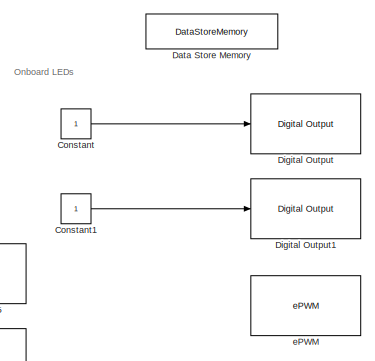
[diagram: root canvas - part 1/4, top right region]
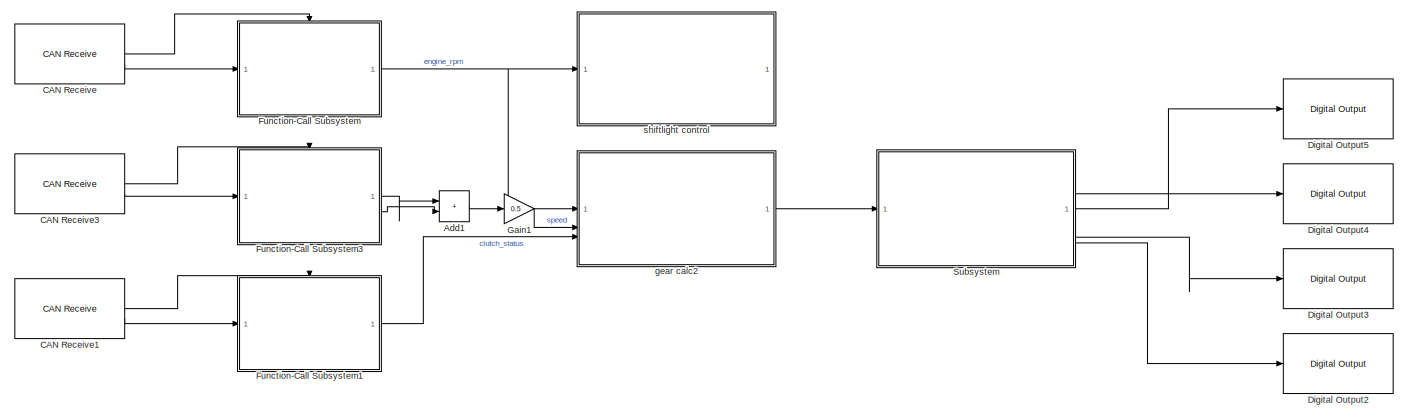
[diagram: root canvas - part 2/4, central region]
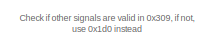
[diagram: root canvas - part 3/4, middle left region]
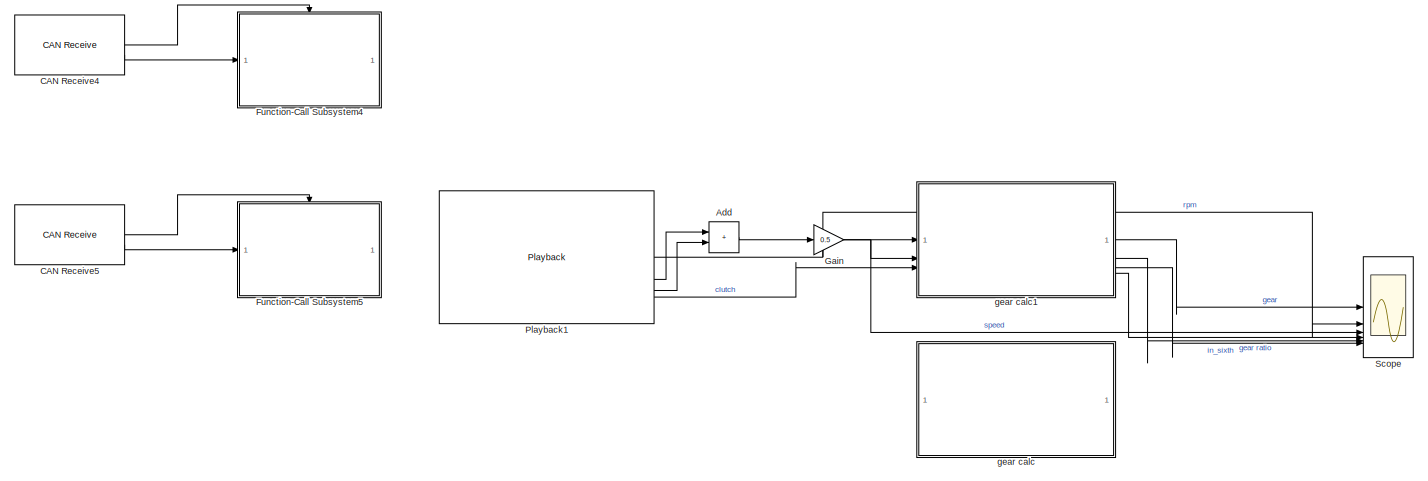
[diagram: root canvas - part 4/4, bottom center region]
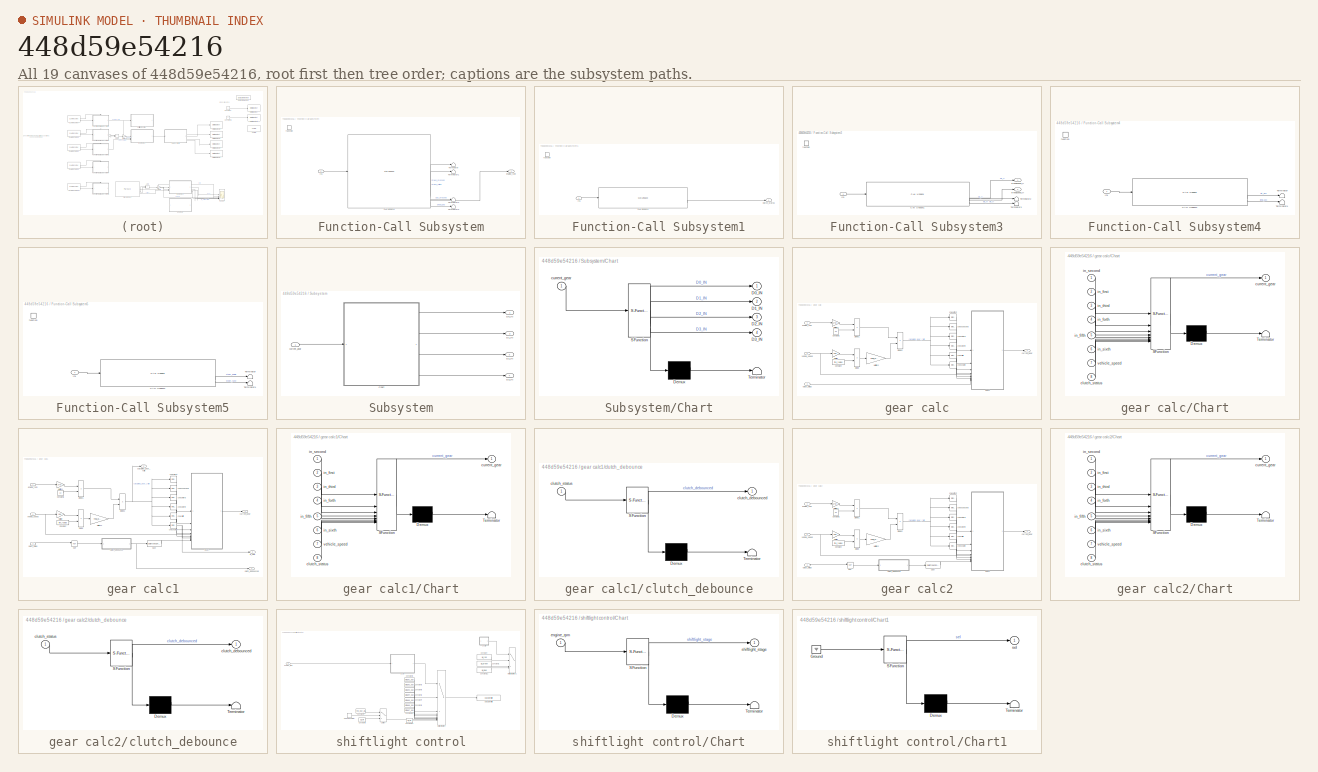
[diagram: thumbnail index - all 19 canvases of the model, root first then tree order]
MODEL slx_448d59e54216
KIND model
CONFIG AbsTol = auto
CONFIG EnableMultiTasking = on
CONFIG FixedStep = 0.001
CONFIG MaxStep = auto
CONFIG MinStep = auto
CONFIG PreLoadFcn = colow_ws2812
CONFIG RelTol = 1e-3
CONFIG SampleTimeConstraint = Unconstrained
CONFIG SolverName = FixedStepAuto
CONFIG StartTime = 0.0
CONFIG StopTime = inf
BLOCK [Sum] Add
  Commented = on
  IconShape = rectangular
BLOCK [Sum] Add1
  IconShape = rectangular
BLOCK [Reference] CAN Receive  REF=c280xlib/CAN Receive
  LibrarySourceBlock = c2837xDlib/CAN Receive
  SourceBlock = c280xlib/CAN Receive
  SourceType = C28x CAN Receive
BLOCK [Reference] CAN Receive1  REF=c280xlib/CAN Receive
  LibrarySourceBlock = c2837xDlib/CAN Receive
  SourceBlock = c280xlib/CAN Receive
  SourceType = C28x CAN Receive
BLOCK [Reference] CAN Receive3  REF=c280xlib/CAN Receive
  LibrarySourceBlock = c2837xDlib/CAN Receive
  SourceBlock = c280xlib/CAN Receive
  SourceType = C28x CAN Receive
BLOCK [Reference] CAN Receive4  REF=c280xlib/CAN Receive
  Commented = on
  LibrarySourceBlock = c2837xDlib/CAN Receive
  SourceBlock = c280xlib/CAN Receive
  SourceType = C28x CAN Receive
BLOCK [Reference] CAN Receive5  REF=c280xlib/CAN Receive
  Commented = on
  LibrarySourceBlock = c2837xDlib/CAN Receive
  SourceBlock = c280xlib/CAN Receive
  SourceType = C28x CAN Receive
BLOCK [Constant] Constant
BLOCK [Constant] Constant1
BLOCK [DataStoreMemory] Data Store Memory
  DataStoreName = duty_cycle_table
  Dimensions = 396
  InitialValue = all_off
  OutDataTypeStr = uint16
  ShowAdditionalParam = off
  WriteAfterWriteMsg = warning
BLOCK [Reference] Digital Output  REF=c2837xDlib/Digital Output
  SourceBlock = c2837xDlib/Digital Output
  SourceType = F2837x GPIO Digital Output
  UserDataPersistent = on
BLOCK [Reference] Digital Output1  REF=c2837xDlib/Digital Output
  SourceBlock = c2837xDlib/Digital Output
  SourceType = F2837x GPIO Digital Output
  UserDataPersistent = on
BLOCK [Reference] Digital Output2  REF=c2837xDlib/Digital Output
  SourceBlock = c2837xDlib/Digital Output
  SourceType = F2837x GPIO Digital Output
  UserDataPersistent = on
BLOCK [Reference] Digital Output3  REF=c2837xDlib/Digital Output
  SourceBlock = c2837xDlib/Digital Output
  SourceType = F2837x GPIO Digital Output
  UserDataPersistent = on
BLOCK [Reference] Digital Output4  REF=c2837xDlib/Digital Output
  SourceBlock = c2837xDlib/Digital Output
  SourceType = F2837x GPIO Digital Output
  UserDataPersistent = on
BLOCK [Reference] Digital Output5  REF=c2837xDlib/Digital Output
  SourceBlock = c2837xDlib/Digital Output
  SourceType = F2837x GPIO Digital Output
  UserDataPersistent = on
BLOCK [SubSystem] Function-Call Subsystem
  TreatAsAtomicUnit = on
BLOCK [Reference] Function-Call Subsystem/CAN Unpack1  REF=canmsglib/CAN Unpack
  LibrarySourceBlock = c2000lib/Target Communication/CAN Unpack
  SourceBlock = canmsglib/CAN Unpack
  SourceType = CAN Unpack
BLOCK [Inport] Function-Call Subsystem/In1
BLOCK [Terminator] Function-Call Subsystem/Terminator
BLOCK [Terminator] Function-Call Subsystem/Terminator1
BLOCK [Terminator] Function-Call Subsystem/Terminator2
BLOCK [Terminator] Function-Call Subsystem/Terminator3
BLOCK [Outport] Function-Call Subsystem/engine_rpm
BLOCK [TriggerPort] Function-Call Subsystem/function
  StatesWhenEnabling = held
  TriggerType = function-call
  VariantControl = (inherit)
BLOCK [SubSystem] Function-Call Subsystem1
  TreatAsAtomicUnit = on
BLOCK [Reference] Function-Call Subsystem1/CAN Unpack1  REF=canmsglib/CAN Unpack
  LibrarySourceBlock = c2000lib/Target Communication/CAN Unpack
  SourceBlock = canmsglib/CAN Unpack
  SourceType = CAN Unpack
BLOCK [Inport] Function-Call Subsystem1/In1
BLOCK [Outport] Function-Call Subsystem1/clutch_status
BLOCK [TriggerPort] Function-Call Subsystem1/function
  StatesWhenEnabling = held
  TriggerType = function-call
  VariantControl = (inherit)
BLOCK [SubSystem] Function-Call Subsystem3
  TreatAsAtomicUnit = on
BLOCK [Reference] Function-Call Subsystem3/CAN Unpack1  REF=canmsglib/CAN Unpack
  LibrarySourceBlock = c2000lib/Target Communication/CAN Unpack
  SourceBlock = canmsglib/CAN Unpack
  SourceType = CAN Unpack
BLOCK [Inport] Function-Call Subsystem3/In1
BLOCK [Terminator] Function-Call Subsystem3/Terminator2
BLOCK [Terminator] Function-Call Subsystem3/Terminator3
BLOCK [TriggerPort] Function-Call Subsystem3/function
  StatesWhenEnabling = held
  TriggerType = function-call
  VariantControl = (inherit)
BLOCK [Outport] Function-Call Subsystem3/wheelspeed_fl
BLOCK [Outport] Function-Call Subsystem3/wheelspeed_fr
  Port = 2
BLOCK [SubSystem] Function-Call Subsystem4
  Commented = on
  TreatAsAtomicUnit = on
BLOCK [Reference] Function-Call Subsystem4/CAN Unpack1  REF=canmsglib/CAN Unpack
  LibrarySourceBlock = c2000lib/Target Communication/CAN Unpack
  SourceBlock = canmsglib/CAN Unpack
  SourceType = CAN Unpack
BLOCK [Inport] Function-Call Subsystem4/In1
BLOCK [Terminator] Function-Call Subsystem4/Terminator
BLOCK [Terminator] Function-Call Subsystem4/Terminator1
BLOCK [TriggerPort] Function-Call Subsystem4/function
  StatesWhenEnabling = held
  TriggerType = function-call
  VariantControl = (inherit)
BLOCK [SubSystem] Function-Call Subsystem5
  Commented = on
  TreatAsAtomicUnit = on
BLOCK [Reference] Function-Call Subsystem5/CAN Unpack1  REF=canmsglib/CAN Unpack
  LibrarySourceBlock = c2000lib/Target Communication/CAN Unpack
  SourceBlock = canmsglib/CAN Unpack
  SourceType = CAN Unpack
BLOCK [Inport] Function-Call Subsystem5/In1
BLOCK [Terminator] Function-Call Subsystem5/Terminator
BLOCK [Terminator] Function-Call Subsystem5/Terminator1
BLOCK [TriggerPort] Function-Call Subsystem5/function
  StatesWhenEnabling = held
  TriggerType = function-call
  VariantControl = (inherit)
BLOCK [Gain] Gain
  Commented = on
  Gain = 0.5
BLOCK [Gain] Gain1
  Gain = 0.5
BLOCK [Playback] Playback1
  Commented = on
  NumPorts = 4
  PartName = 793a99b5-5b81-49ab-9d78-3a6aebb216a4
BLOCK [Scope] Scope
  Commented = on
  Floating = off
  NumInputPorts = 6
  ScopeSpecificationString = Simulink.scopes.TimeScopeBlockCfg('CurrentConfiguration', extmgr.ConfigurationSet(extmgr.Configuration('Core','General UI',true),extmgr.Configuration('Core','Source UI',true),extmgr.Configuration('Sources','WiredSimulink',true,'DataLoggingVariableName','ScopeData1'),extmgr.Configuration('Visuals','Time Domain',true,'SerializedDisplays',{struct('MinYLimReal','-0.75','MaxYLimReal','6.75','YLabelReal...<+3801ch>
BLOCK [SubSystem] Subsystem
BLOCK [SubSystem] Subsystem/Chart
  ErrorFcn = Stateflow.Translate.translate
  PermitHierarchicalResolution = ExplicitOnly
  SFBlockType = Chart
  TreatAsAtomicUnit = on
BLOCK [Demux] Subsystem/Chart/ Demux 
  Outputs = 1
BLOCK [S-Function] Subsystem/Chart/ SFunction 
  EnableBusSupport = on
  FunctionName = sf_sfun
  PortCounts = [1 5]
  SFcnIsStateOwnerBlock = off
  SFunctionDeploymentMode = off
  Tag = Stateflow S-Function 8
BLOCK [Terminator] Subsystem/Chart/ Terminator 
BLOCK [Outport] Subsystem/Chart/D0_IN
BLOCK [Outport] Subsystem/Chart/D1_IN
  Port = 2
BLOCK [Outport] Subsystem/Chart/D2_IN
  Port = 3
BLOCK [Outport] Subsystem/Chart/D3_IN
  Port = 4
BLOCK [Inport] Subsystem/Chart/current_gear
BLOCK [Outport] Subsystem/D0_IN
BLOCK [Outport] Subsystem/D1_IN
  Port = 2
BLOCK [Outport] Subsystem/D2_IN
  Port = 3
BLOCK [Outport] Subsystem/D3_IN
  Port = 4
BLOCK [Inport] Subsystem/current_gear
BLOCK [Reference] ePWM  REF=c2802xlib/ePWM
  SourceBlock = c2802xlib/ePWM
  SourceType = ePWM Type 1-4
  UserDataPersistent = on
BLOCK [SubSystem] gear calc
  Commented = on
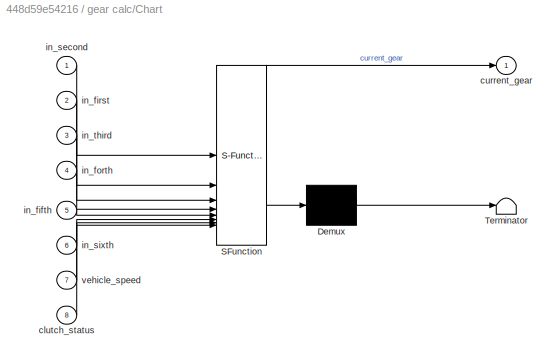
BLOCK [SubSystem] gear calc/Chart
  Commented = on
  ErrorFcn = Stateflow.Translate.translate
  PermitHierarchicalResolution = ExplicitOnly
  PortSchema = {"entries":[{"content":{"sides":[{"content":{"connectorIds":["In2","In1","In3","In4","In5","In6","In7","In8"]},"type":"ConnectorPlacement.EquallySpacedRectSide","uuid":"7c5ecf18-4ca5-48cf-b6cc-f6d674adc791"},{"content":{"connectorIds":["Out1"],"side":"RIGHT"},"type":"ConnectorPlacement.EquallySpacedRectSide","uuid":"8bc4c731-54ce-4b60-a017-d200a54467ca"},{"content":{"side":"TOP"},"type":"Connector...<+264ch>  <repeated x3 — deduplicated; at blocks: Chart>
  SFBlockType = Chart
  TreatAsAtomicUnit = on
BLOCK [Demux] gear calc/Chart/ Demux 
  Outputs = 1
BLOCK [S-Function] gear calc/Chart/ SFunction 
  EnableBusSupport = on
  FunctionName = sf_sfun
  PortCounts = [8 2]
  SFcnIsStateOwnerBlock = off
  SFunctionDeploymentMode = off
  Tag = Stateflow S-Function 1
BLOCK [Terminator] gear calc/Chart/ Terminator 
BLOCK [Inport] gear calc/Chart/clutch_status
  Port = 8
BLOCK [Outport] gear calc/Chart/current_gear
BLOCK [Inport] gear calc/Chart/in_fifth
  Port = 5
BLOCK [Inport] gear calc/Chart/in_first
  Port = 2
BLOCK [Inport] gear calc/Chart/in_forth
  Port = 4
BLOCK [Inport] gear calc/Chart/in_second
BLOCK [Inport] gear calc/Chart/in_sixth
  Port = 6
BLOCK [Inport] gear calc/Chart/in_third
  Port = 3
BLOCK [Inport] gear calc/Chart/vehicle_speed
  Port = 7
BLOCK [Constant] gear calc/Constant
  Value = tire_radius
BLOCK [Constant] gear calc/Constant1
  Value = 60
BLOCK [Product] gear calc/Divide
  Inputs = */
BLOCK [Product] gear calc/Divide1
  Inputs = */
BLOCK [Product] gear calc/Divide2
  Inputs = */
BLOCK [Gain] gear calc/Multiply
  Gain = 1/3.6
BLOCK [Gain] gear calc/Multiply1
  Gain = 2*pi
BLOCK [Gain] gear calc/Multiply2
  Gain = final_drive_ratio
BLOCK [Reference] gear calc/check fifth  REF=simulink/Logic and Bit
Operations/Interval Test
  SourceBlock = simulink/Logic and Bit\nOperations/Interval Test
  SourceType = Interval Test
BLOCK [Reference] gear calc/check first  REF=simulink/Logic and Bit
Operations/Interval Test
  SourceBlock = simulink/Logic and Bit\nOperations/Interval Test
  SourceType = Interval Test
BLOCK [Reference] gear calc/check forth  REF=simulink/Logic and Bit
Operations/Interval Test
  SourceBlock = simulink/Logic and Bit\nOperations/Interval Test
  SourceType = Interval Test
BLOCK [Reference] gear calc/check second  REF=simulink/Logic and Bit
Operations/Interval Test
  SourceBlock = simulink/Logic and Bit\nOperations/Interval Test
  SourceType = Interval Test
BLOCK [Reference] gear calc/check sixth  REF=simulink/Logic and Bit
Operations/Interval Test
  SourceBlock = simulink/Logic and Bit\nOperations/Interval Test
  SourceType = Interval Test
BLOCK [Reference] gear calc/check third  REF=simulink/Logic and Bit
Operations/Interval Test
  SourceBlock = simulink/Logic and Bit\nOperations/Interval Test
  SourceType = Interval Test
BLOCK [Inport] gear calc/clutch_status
  Port = 3
BLOCK [Outport] gear calc/current_gear
BLOCK [Inport] gear calc/engine_rpm
BLOCK [Inport] gear calc/vehicle_speed
  Port = 2
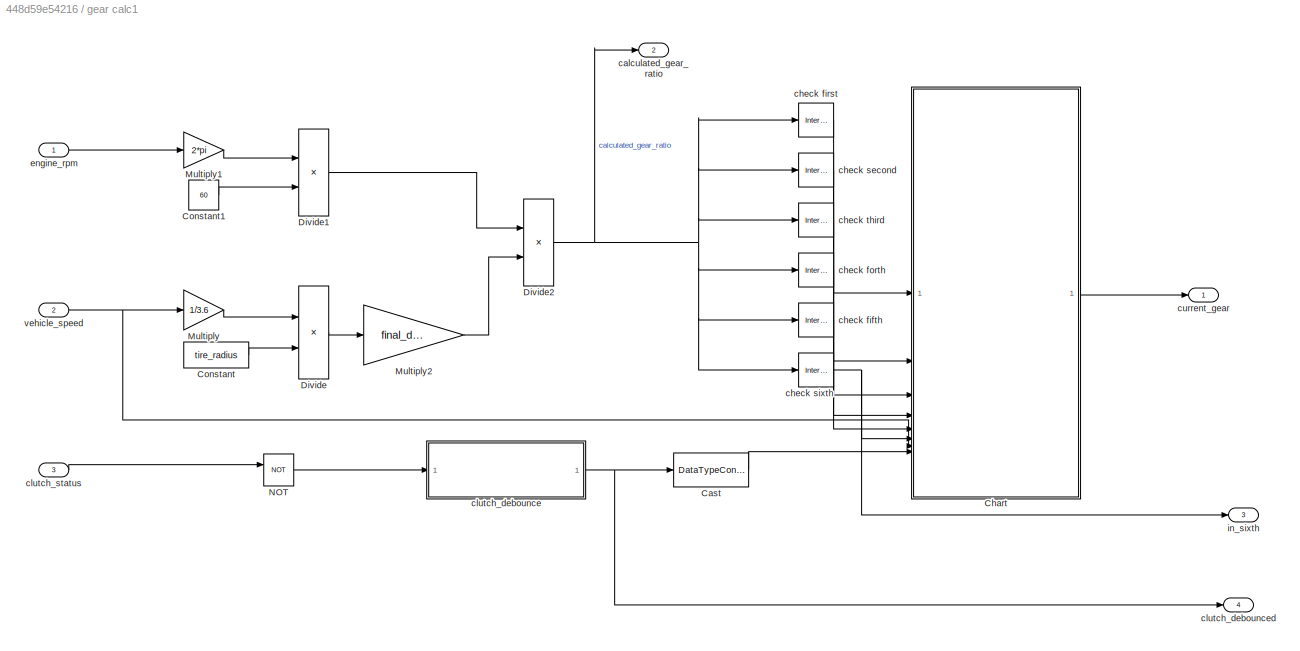
BLOCK [SubSystem] gear calc1
  Commented = on
BLOCK [DataTypeConversion] gear calc1/Cast
  OutDataTypeStr = boolean
  RndMeth = Floor
  SaturateOnIntegerOverflow = off
BLOCK [SubSystem] gear calc1/Chart
  ErrorFcn = Stateflow.Translate.translate
  PermitHierarchicalResolution = ExplicitOnly
  SFBlockType = Chart
  TreatAsAtomicUnit = on
BLOCK [Demux] gear calc1/Chart/ Demux 
  Outputs = 1
BLOCK [S-Function] gear calc1/Chart/ SFunction 
  EnableBusSupport = on
  FunctionName = sf_sfun
  PortCounts = [8 2]
  SFcnIsStateOwnerBlock = off
  SFunctionDeploymentMode = off
  Tag = Stateflow S-Function 4
BLOCK [Terminator] gear calc1/Chart/ Terminator 
BLOCK [Inport] gear calc1/Chart/clutch_status
  Port = 8
BLOCK [Outport] gear calc1/Chart/current_gear
BLOCK [Inport] gear calc1/Chart/in_fifth
  Port = 5
BLOCK [Inport] gear calc1/Chart/in_first
  Port = 2
BLOCK [Inport] gear calc1/Chart/in_forth
  Port = 4
BLOCK [Inport] gear calc1/Chart/in_second
BLOCK [Inport] gear calc1/Chart/in_sixth
  Port = 6
BLOCK [Inport] gear calc1/Chart/in_third
  Port = 3
BLOCK [Inport] gear calc1/Chart/vehicle_speed
  Port = 7
BLOCK [Constant] gear calc1/Constant
  Value = tire_radius
BLOCK [Constant] gear calc1/Constant1
  Value = 60
BLOCK [Product] gear calc1/Divide
  Inputs = */
BLOCK [Product] gear calc1/Divide1
  Inputs = */
BLOCK [Product] gear calc1/Divide2
  Inputs = */
BLOCK [Gain] gear calc1/Multiply
  Gain = 1/3.6
BLOCK [Gain] gear calc1/Multiply1
  Gain = 2*pi
BLOCK [Gain] gear calc1/Multiply2
  Gain = final_drive_ratio
BLOCK [Logic] gear calc1/NOT
  AllPortsSameDT = off
  IconShape = distinctive
  Operator = NOT
  OutDataTypeStr = boolean
BLOCK [Outport] gear calc1/calculated_gear_ratio
  Port = 2
BLOCK [Reference] gear calc1/check fifth  REF=simulink/Logic and Bit
Operations/Interval Test
  SourceBlock = simulink/Logic and Bit\nOperations/Interval Test
  SourceType = Interval Test
BLOCK [Reference] gear calc1/check first  REF=simulink/Logic and Bit
Operations/Interval Test
  SourceBlock = simulink/Logic and Bit\nOperations/Interval Test
  SourceType = Interval Test
BLOCK [Reference] gear calc1/check forth  REF=simulink/Logic and Bit
Operations/Interval Test
  SourceBlock = simulink/Logic and Bit\nOperations/Interval Test
  SourceType = Interval Test
BLOCK [Reference] gear calc1/check second  REF=simulink/Logic and Bit
Operations/Interval Test
  SourceBlock = simulink/Logic and Bit\nOperations/Interval Test
  SourceType = Interval Test
BLOCK [Reference] gear calc1/check sixth  REF=simulink/Logic and Bit
Operations/Interval Test
  SourceBlock = simulink/Logic and Bit\nOperations/Interval Test
  SourceType = Interval Test
BLOCK [Reference] gear calc1/check third  REF=simulink/Logic and Bit
Operations/Interval Test
  SourceBlock = simulink/Logic and Bit\nOperations/Interval Test
  SourceType = Interval Test
BLOCK [SubSystem] gear calc1/clutch_debounce
  ErrorFcn = Stateflow.Translate.translate
  PermitHierarchicalResolution = ExplicitOnly
  SFBlockType = Chart
  TreatAsAtomicUnit = on
BLOCK [Demux] gear calc1/clutch_debounce/ Demux 
  Outputs = 1
BLOCK [S-Function] gear calc1/clutch_debounce/ SFunction 
  EnableBusSupport = on
  FunctionName = sf_sfun
  PortCounts = [1 2]
  SFcnIsStateOwnerBlock = off
  SFunctionDeploymentMode = off
  Tag = Stateflow S-Function 2
BLOCK [Terminator] gear calc1/clutch_debounce/ Terminator 
BLOCK [Outport] gear calc1/clutch_debounce/clutch_debounced
BLOCK [Inport] gear calc1/clutch_debounce/clutch_status
BLOCK [Outport] gear calc1/clutch_debounced
  Port = 4
BLOCK [Inport] gear calc1/clutch_status
  Port = 3
BLOCK [Outport] gear calc1/current_gear
BLOCK [Inport] gear calc1/engine_rpm
BLOCK [Outport] gear calc1/in_sixth
  Port = 3
BLOCK [Inport] gear calc1/vehicle_speed
  Port = 2
BLOCK [SubSystem] gear calc2
BLOCK [DataTypeConversion] gear calc2/Cast
  OutDataTypeStr = boolean
  RndMeth = Floor
  SaturateOnIntegerOverflow = off
BLOCK [SubSystem] gear calc2/Chart
  ErrorFcn = Stateflow.Translate.translate
  PermitHierarchicalResolution = ExplicitOnly
  SFBlockType = Chart
  TreatAsAtomicUnit = on
BLOCK [Demux] gear calc2/Chart/ Demux 
  Outputs = 1
BLOCK [S-Function] gear calc2/Chart/ SFunction 
  EnableBusSupport = on
  FunctionName = sf_sfun
  PortCounts = [8 2]
  SFcnIsStateOwnerBlock = off
  SFunctionDeploymentMode = off
  Tag = Stateflow S-Function 6
BLOCK [Terminator] gear calc2/Chart/ Terminator 
BLOCK [Inport] gear calc2/Chart/clutch_status
  Port = 8
BLOCK [Outport] gear calc2/Chart/current_gear
BLOCK [Inport] gear calc2/Chart/in_fifth
  Port = 5
BLOCK [Inport] gear calc2/Chart/in_first
  Port = 2
BLOCK [Inport] gear calc2/Chart/in_forth
  Port = 4
BLOCK [Inport] gear calc2/Chart/in_second
BLOCK [Inport] gear calc2/Chart/in_sixth
  Port = 6
BLOCK [Inport] gear calc2/Chart/in_third
  Port = 3
BLOCK [Inport] gear calc2/Chart/vehicle_speed
  Port = 7
BLOCK [Constant] gear calc2/Constant
  Value = tire_radius
BLOCK [Constant] gear calc2/Constant1
  Value = 60
BLOCK [Product] gear calc2/Divide
  Inputs = */
BLOCK [Product] gear calc2/Divide1
  Inputs = */
BLOCK [Product] gear calc2/Divide2
  Inputs = */
BLOCK [Gain] gear calc2/Multiply
  Gain = 1/3.6
BLOCK [Gain] gear calc2/Multiply1
  Gain = 2*pi
BLOCK [Gain] gear calc2/Multiply2
  Gain = final_drive_ratio
BLOCK [Logic] gear calc2/NOT
  AllPortsSameDT = off
  IconShape = distinctive
  Operator = NOT
  OutDataTypeStr = boolean
BLOCK [Reference] gear calc2/check fifth  REF=simulink/Logic and Bit
Operations/Interval Test
  SourceBlock = simulink/Logic and Bit\nOperations/Interval Test
  SourceType = Interval Test
BLOCK [Reference] gear calc2/check first  REF=simulink/Logic and Bit
Operations/Interval Test
  SourceBlock = simulink/Logic and Bit\nOperations/Interval Test
  SourceType = Interval Test
BLOCK [Reference] gear calc2/check forth  REF=simulink/Logic and Bit
Operations/Interval Test
  SourceBlock = simulink/Logic and Bit\nOperations/Interval Test
  SourceType = Interval Test
BLOCK [Reference] gear calc2/check second  REF=simulink/Logic and Bit
Operations/Interval Test
  SourceBlock = simulink/Logic and Bit\nOperations/Interval Test
  SourceType = Interval Test
BLOCK [Reference] gear calc2/check sixth  REF=simulink/Logic and Bit
Operations/Interval Test
  SourceBlock = simulink/Logic and Bit\nOperations/Interval Test
  SourceType = Interval Test
BLOCK [Reference] gear calc2/check third  REF=simulink/Logic and Bit
Operations/Interval Test
  SourceBlock = simulink/Logic and Bit\nOperations/Interval Test
  SourceType = Interval Test
BLOCK [SubSystem] gear calc2/clutch_debounce
  ErrorFcn = Stateflow.Translate.translate
  PermitHierarchicalResolution = ExplicitOnly
  SFBlockType = Chart
  TreatAsAtomicUnit = on
BLOCK [Demux] gear calc2/clutch_debounce/ Demux 
  Outputs = 1
BLOCK [S-Function] gear calc2/clutch_debounce/ SFunction 
  EnableBusSupport = on
  FunctionName = sf_sfun
  PortCounts = [1 2]
  SFcnIsStateOwnerBlock = off
  SFunctionDeploymentMode = off
  Tag = Stateflow S-Function 7
BLOCK [Terminator] gear calc2/clutch_debounce/ Terminator 
BLOCK [Outport] gear calc2/clutch_debounce/clutch_debounced
BLOCK [Inport] gear calc2/clutch_debounce/clutch_status
BLOCK [Inport] gear calc2/clutch_status
  Port = 3
BLOCK [Outport] gear calc2/current_gear
BLOCK [Inport] gear calc2/engine_rpm
BLOCK [Inport] gear calc2/vehicle_speed
  Port = 2
BLOCK [SubSystem] shiftlight control
BLOCK [SubSystem] shiftlight control/Chart
  ErrorFcn = Stateflow.Translate.translate
  PermitHierarchicalResolution = ExplicitOnly
  SFBlockType = Chart
  TreatAsAtomicUnit = on
BLOCK [Demux] shiftlight control/Chart/ Demux 
  Outputs = 1
BLOCK [S-Function] shiftlight control/Chart/ SFunction 
  EnableBusSupport = on
  FunctionName = sf_sfun
  PortCounts = [1 2]
  SFcnIsStateOwnerBlock = off
  SFunctionDeploymentMode = off
  Tag = Stateflow S-Function 3
BLOCK [Terminator] shiftlight control/Chart/ Terminator 
BLOCK [Inport] shiftlight control/Chart/engine_rpm
BLOCK [Outport] shiftlight control/Chart/shiftlight_stage
BLOCK [SubSystem] shiftlight control/Chart1
  Commented = on
  ErrorFcn = Stateflow.Translate.translate
  PermitHierarchicalResolution = ExplicitOnly
  SFBlockType = Chart
  TreatAsAtomicUnit = on
BLOCK [Demux] shiftlight control/Chart1/ Demux 
  Outputs = 1
BLOCK [Ground] shiftlight control/Chart1/ Ground 
BLOCK [S-Function] shiftlight control/Chart1/ SFunction 
  EnableBusSupport = on
  FunctionName = sf_sfun
  PortCounts = [1 2]
  SFcnIsStateOwnerBlock = off
  SFunctionDeploymentMode = off
  Tag = Stateflow S-Function 5
BLOCK [Terminator] shiftlight control/Chart1/ Terminator 
BLOCK [Outport] shiftlight control/Chart1/sel
BLOCK [Constant] shiftlight control/Constant
  Commented = on
  Value = all_red
BLOCK [Constant] shiftlight control/Constant1
  Commented = on
  Value = all_green
BLOCK [Constant] shiftlight control/Constant10
  OutDataTypeStr = uint16
  Value = stage7_day
BLOCK [Constant] shiftlight control/Constant11
  OutDataTypeStr = uint16
  Value = all_off
BLOCK [Constant] shiftlight control/Constant12
  Commented = on
  Value = all_blue
BLOCK [Constant] shiftlight control/Constant2
  OutDataTypeStr = uint16
  Value = stage1_day
BLOCK [Constant] shiftlight control/Constant3
  OutDataTypeStr = uint16
  Value = stage2_day
BLOCK [Constant] shiftlight control/Constant4
  OutDataTypeStr = uint16
  Value = red_day_all
BLOCK [Constant] shiftlight control/Constant5
  OutDataTypeStr = uint16
  Value = stage3_day
BLOCK [Constant] shiftlight control/Constant6
  OutDataTypeStr = uint16
  Value = stage4_day
BLOCK [Constant] shiftlight control/Constant7
  OutDataTypeStr = uint16
  Value = stage5_day
BLOCK [Constant] shiftlight control/Constant8
  OutDataTypeStr = uint16
  Value = all_off
BLOCK [Constant] shiftlight control/Constant9
  OutDataTypeStr = uint16
  Value = stage6_day
BLOCK [DataStoreWrite] shiftlight control/Data Store Write
  DataStoreName = duty_cycle_table
  IndexOptions = Index vector (dialog)
  Indices = 1
  OutputSizes = 1
BLOCK [MultiPortSwitch] shiftlight control/Multiport Switch
  DataPortIndices = {5500,6000,6500,6800,0}
  DiagnosticForDefault = Warning
  InputSameDT = off
  Inputs = 9
  SaturateOnIntegerOverflow = off
BLOCK [MultiPortSwitch] shiftlight control/Multiport Switch1
  Commented = on
  DataPortOrder = Zero-based contiguous
  InputSameDT = off
  OutDataTypeStr = uint16
  SaturateOnIntegerOverflow = off
  zeroidx = on
BLOCK [DiscretePulseGenerator] shiftlight control/Pulse Generator
  Period = 0.15
  PulseType = Time based
  PulseWidth = 50
BLOCK [Switch] shiftlight control/Switch
  Criteria = u2 > Threshold
  InputSameDT = off
  SaturateOnIntegerOverflow = off
BLOCK [Inport] shiftlight control/engine_rpm
ANNOTATION (root): Check if other signals are valid in 0x309, if not, use 0x1d0 instead
ANNOTATION (root): Onboard LEDs
LINE Add1:1 -> Gain1:1
LINE Add:1 -> Gain:1
LINE CAN Receive1:1 -> Function-Call Subsystem1:trigger
LINE CAN Receive1:2 -> Function-Call Subsystem1:1
LINE CAN Receive3:1 -> Function-Call Subsystem3:trigger
LINE CAN Receive3:2 -> Function-Call Subsystem3:1
LINE CAN Receive4:1 -> Function-Call Subsystem4:trigger
LINE CAN Receive4:2 -> Function-Call Subsystem4:1
LINE CAN Receive5:1 -> Function-Call Subsystem5:trigger
LINE CAN Receive5:2 -> Function-Call Subsystem5:1
LINE CAN Receive:1 -> Function-Call Subsystem:trigger
LINE CAN Receive:2 -> Function-Call Subsystem:1
LINE Constant1:1 -> Digital Output1:1
LINE Constant:1 -> Digital Output:1
LINE Function-Call Subsystem/CAN Unpack1:10 -> Function-Call Subsystem/Terminator2:1
LINE Function-Call Subsystem/CAN Unpack1:11 -> Function-Call Subsystem/Terminator3:1
LINE Function-Call Subsystem/CAN Unpack1:5 -> Function-Call Subsystem/Terminator:1
LINE Function-Call Subsystem/CAN Unpack1:6 -> Function-Call Subsystem/Terminator1:1
LINE Function-Call Subsystem/CAN Unpack1:9 -> Function-Call Subsystem/engine_rpm:1
LINE Function-Call Subsystem/In1:1 -> Function-Call Subsystem/CAN Unpack1:1
LINE Function-Call Subsystem1/CAN Unpack1:3 -> Function-Call Subsystem1/clutch_status:1
LINE Function-Call Subsystem1/In1:1 -> Function-Call Subsystem1/CAN Unpack1:1
LINE Function-Call Subsystem1:1 -> gear calc2:3
LINE Function-Call Subsystem3/CAN Unpack1:2 -> Function-Call Subsystem3/wheelspeed_fl:1
LINE Function-Call Subsystem3/CAN Unpack1:3 -> Function-Call Subsystem3/wheelspeed_fr:1
LINE Function-Call Subsystem3/CAN Unpack1:4 -> Function-Call Subsystem3/Terminator2:1
LINE Function-Call Subsystem3/CAN Unpack1:5 -> Function-Call Subsystem3/Terminator3:1
LINE Function-Call Subsystem3/In1:1 -> Function-Call Subsystem3/CAN Unpack1:1
LINE Function-Call Subsystem3:1 -> Add1:1
LINE Function-Call Subsystem3:2 -> Add1:2
LINE Function-Call Subsystem4/CAN Unpack1:3 -> Function-Call Subsystem4/Terminator:1
LINE Function-Call Subsystem4/CAN Unpack1:4 -> Function-Call Subsystem4/Terminator1:1
LINE Function-Call Subsystem4/In1:1 -> Function-Call Subsystem4/CAN Unpack1:1
LINE Function-Call Subsystem5/CAN Unpack1:3 -> Function-Call Subsystem5/Terminator:1
LINE Function-Call Subsystem5/CAN Unpack1:4 -> Function-Call Subsystem5/Terminator1:1
LINE Function-Call Subsystem5/In1:1 -> Function-Call Subsystem5/CAN Unpack1:1
NET Function-Call Subsystem:1 -> gear calc2:1, shiftlight control:1
LINE Gain1:1 -> gear calc2:2
NET Gain:1 -> Scope:3, gear calc1:2
NET Playback1:1 -> Scope:2, gear calc1:1
LINE Playback1:2 -> Add:1
LINE Playback1:3 -> Add:2
LINE Playback1:4 -> gear calc1:3
LINE Subsystem/Chart:1 -> Subsystem/D0_IN:1
LINE Subsystem/Chart:2 -> Subsystem/D1_IN:1
LINE Subsystem/Chart:3 -> Subsystem/D2_IN:1
LINE Subsystem/Chart:4 -> Subsystem/D3_IN:1
LINE Subsystem/current_gear:1 -> Subsystem/Chart:1
LINE Subsystem:1 -> Digital Output5:1
LINE Subsystem:2 -> Digital Output4:1
LINE Subsystem:3 -> Digital Output3:1
LINE Subsystem:4 -> Digital Output2:1
LINE gear calc/Chart:1 -> gear calc/current_gear:1
LINE gear calc/Constant1:1 -> gear calc/Divide1:2
LINE gear calc/Constant:1 -> gear calc/Divide:2
LINE gear calc/Divide1:1 -> gear calc/Divide2:1
NET gear calc/Divide2:1 -> gear calc/check fifth:1, gear calc/check first:1, gear calc/check forth:1, gear calc/check second:1, gear calc/check sixth:1, gear calc/check third:1
LINE gear calc/Divide:1 -> gear calc/Multiply2:1
LINE gear calc/Multiply1:1 -> gear calc/Divide1:1
LINE gear calc/Multiply2:1 -> gear calc/Divide2:2
LINE gear calc/Multiply:1 -> gear calc/Divide:1
LINE gear calc/check fifth:1 -> gear calc/Chart:5
LINE gear calc/check first:1 -> gear calc/Chart:2
LINE gear calc/check forth:1 -> gear calc/Chart:4
LINE gear calc/check second:1 -> gear calc/Chart:1
LINE gear calc/check sixth:1 -> gear calc/Chart:6
LINE gear calc/check third:1 -> gear calc/Chart:3
LINE gear calc/clutch_status:1 -> gear calc/Chart:8
LINE gear calc/engine_rpm:1 -> gear calc/Multiply1:1
NET gear calc/vehicle_speed:1 -> gear calc/Chart:7, gear calc/Multiply:1
LINE gear calc1/Cast:1 -> gear calc1/Chart:8
LINE gear calc1/Chart:1 -> gear calc1/current_gear:1
LINE gear calc1/Constant1:1 -> gear calc1/Divide1:2
LINE gear calc1/Constant:1 -> gear calc1/Divide:2
LINE gear calc1/Divide1:1 -> gear calc1/Divide2:1
NET gear calc1/Divide2:1 -> gear calc1/calculated_gear_ratio:1, gear calc1/check fifth:1, gear calc1/check first:1, gear calc1/check forth:1, gear calc1/check second:1, gear calc1/check sixth:1, gear calc1/check third:1
LINE gear calc1/Divide:1 -> gear calc1/Multiply2:1
LINE gear calc1/Multiply1:1 -> gear calc1/Divide1:1
LINE gear calc1/Multiply2:1 -> gear calc1/Divide2:2
LINE gear calc1/Multiply:1 -> gear calc1/Divide:1
LINE gear calc1/NOT:1 -> gear calc1/clutch_debounce:1
LINE gear calc1/check fifth:1 -> gear calc1/Chart:5
LINE gear calc1/check first:1 -> gear calc1/Chart:2
LINE gear calc1/check forth:1 -> gear calc1/Chart:4
LINE gear calc1/check second:1 -> gear calc1/Chart:1
NET gear calc1/check sixth:1 -> gear calc1/Chart:6, gear calc1/in_sixth:1
LINE gear calc1/check third:1 -> gear calc1/Chart:3
NET gear calc1/clutch_debounce:1 -> gear calc1/Cast:1, gear calc1/clutch_debounced:1
LINE gear calc1/clutch_status:1 -> gear calc1/NOT:1
LINE gear calc1/engine_rpm:1 -> gear calc1/Multiply1:1
NET gear calc1/vehicle_speed:1 -> gear calc1/Chart:7, gear calc1/Multiply:1
LINE gear calc1:1 -> Scope:1
LINE gear calc1:2 -> Scope:5
LINE gear calc1:3 -> Scope:6
LINE gear calc1:4 -> Scope:4
LINE gear calc2/Cast:1 -> gear calc2/Chart:8
LINE gear calc2/Chart:1 -> gear calc2/current_gear:1
LINE gear calc2/Constant1:1 -> gear calc2/Divide1:2
LINE gear calc2/Constant:1 -> gear calc2/Divide:2
LINE gear calc2/Divide1:1 -> gear calc2/Divide2:1
NET gear calc2/Divide2:1 -> gear calc2/check fifth:1, gear calc2/check first:1, gear calc2/check forth:1, gear calc2/check second:1, gear calc2/check sixth:1, gear calc2/check third:1
LINE gear calc2/Divide:1 -> gear calc2/Multiply2:1
LINE gear calc2/Multiply1:1 -> gear calc2/Divide1:1
LINE gear calc2/Multiply2:1 -> gear calc2/Divide2:2
LINE gear calc2/Multiply:1 -> gear calc2/Divide:1
LINE gear calc2/NOT:1 -> gear calc2/clutch_debounce:1
LINE gear calc2/check fifth:1 -> gear calc2/Chart:5
LINE gear calc2/check first:1 -> gear calc2/Chart:2
LINE gear calc2/check forth:1 -> gear calc2/Chart:4
LINE gear calc2/check second:1 -> gear calc2/Chart:1
LINE gear calc2/check sixth:1 -> gear calc2/Chart:6
LINE gear calc2/check third:1 -> gear calc2/Chart:3
LINE gear calc2/clutch_debounce:1 -> gear calc2/Cast:1
LINE gear calc2/clutch_status:1 -> gear calc2/NOT:1
LINE gear calc2/engine_rpm:1 -> gear calc2/Multiply1:1
NET gear calc2/vehicle_speed:1 -> gear calc2/Chart:7, gear calc2/Multiply:1
LINE gear calc2:1 -> Subsystem:1
LINE shiftlight control/Chart1:1 -> shiftlight control/Multiport Switch1:1
LINE shiftlight control/Chart:1 -> shiftlight control/Multiport Switch:1
LINE shiftlight control/Constant10:1 -> shiftlight control/Multiport Switch:8
LINE shiftlight control/Constant11:1 -> shiftlight control/Multiport Switch:10
LINE shiftlight control/Constant12:1 -> shiftlight control/Multiport Switch1:4
LINE shiftlight control/Constant1:1 -> shiftlight control/Multiport Switch1:3
LINE shiftlight control/Constant2:1 -> shiftlight control/Multiport Switch:2
LINE shiftlight control/Constant3:1 -> shiftlight control/Multiport Switch:3
LINE shiftlight control/Constant4:1 -> shiftlight control/Switch:1
LINE shiftlight control/Constant5:1 -> shiftlight control/Multiport Switch:4
LINE shiftlight control/Constant6:1 -> shiftlight control/Multiport Switch:5
LINE shiftlight control/Constant7:1 -> shiftlight control/Multiport Switch:6
LINE shiftlight control/Constant8:1 -> shiftlight control/Switch:3
LINE shiftlight control/Constant9:1 -> shiftlight control/Multiport Switch:7
LINE shiftlight control/Constant:1 -> shiftlight control/Multiport Switch1:2
LINE shiftlight control/Multiport Switch:1 -> shiftlight control/Data Store Write:1
LINE shiftlight control/Pulse Generator:1 -> shiftlight control/Switch:2
LINE shiftlight control/Switch:1 -> shiftlight control/Multiport Switch:9
LINE shiftlight control/engine_rpm:1 -> shiftlight control/Chart:1
note: NET lines group one-source signal fan-out (src -> all destinations, sorted); 1:1 wires keep LINE
CHART gear calc1/Chart states=10 transitions=18
  STATE_LABEL 'Neutral\nen, du:\ncurrent_gear = 0;'
  STATE_LABEL 'Gear_Out'
  STATE_LABEL 'In_First\nen, du:\ncurrent_gear = 1;'
  STATE_LABEL 'In_Second\nen, du:\ncurrent_gear = 2;'
  STATE_LABEL 'In_Third\nen, du:\ncurrent_gear = 3;'
  STATE_LABEL 'In_Fourth\nen, du:\ncurrent_gear = 4;'
  STATE_LABEL 'In_Fifth\nen, du:\ncurrent_gear = 5;'
  STATE_LABEL 'In_Sixth\nen, du:\ncurrent_gear = 6;'
  STATE_LABEL 'In_First\nen, du:\ncurrent_gear = 1;'
  STATE_LABEL 'In_Second\nen, du:\ncurrent_gear = 2;'
  STATE_LABEL 'In_Third\nen, du:\ncurrent_gear = 3;'
  STATE_LABEL 'In_Fourth\nen, du:\ncurrent_gear = 4;'
  STATE_LABEL 'In_Fifth\nen, du:\ncurrent_gear = 5;'
  STATE_LABEL 'In_Sixth\nen, du:\ncurrent_gear = 6;'
  STATE_LABEL 'Clutch_Out\nen, du:\ncurrent_gear = 0;'
  STATE_LABEL 'Clutch_In\nen, du:\ncurrent_gear = 0;'
CHART shiftlight control/Chart1 states=3 transitions=4
  STATE_LABEL 'red\nen,du:\nsel = 0;'
  STATE_LABEL 'green\nen,du:\nsel = 1;\n'
  STATE_LABEL 'blue\nen,du:\nsel = 2;\n'
CHART gear calc2/Chart states=10 transitions=18
  STATE_LABEL 'Neutral\nen, du:\ncurrent_gear = 0;'
  STATE_LABEL 'Gear_Out'
  STATE_LABEL 'In_First\nen, du:\ncurrent_gear = 1;'
  STATE_LABEL 'In_Second\nen, du:\ncurrent_gear = 2;'
  STATE_LABEL 'In_Third\nen, du:\ncurrent_gear = 3;'
  STATE_LABEL 'In_Fourth\nen, du:\ncurrent_gear = 4;'
  STATE_LABEL 'In_Fifth\nen, du:\ncurrent_gear = 5;'
  STATE_LABEL 'In_Sixth\nen, du:\ncurrent_gear = 6;'
  STATE_LABEL 'In_First\nen, du:\ncurrent_gear = 1;'
  STATE_LABEL 'In_Second\nen, du:\ncurrent_gear = 2;'
  STATE_LABEL 'In_Third\nen, du:\ncurrent_gear = 3;'
  STATE_LABEL 'In_Fourth\nen, du:\ncurrent_gear = 4;'
  STATE_LABEL 'In_Fifth\nen, du:\ncurrent_gear = 5;'
  STATE_LABEL 'In_Sixth\nen, du:\ncurrent_gear = 6;'
  STATE_LABEL 'Clutch_Out\nen, du:\ncurrent_gear = 0;'
  STATE_LABEL 'Clutch_In\nen, du:\ncurrent_gear = 0;'
CHART gear calc2/clutch_debounce states=5 transitions=7
  STATE_LABEL 'Wait'
  STATE_LABEL 'To_on\nen, du:\nclutch_debounced = 0;'
  STATE_LABEL 'To_off\nen, du:\nclutch_debounced = 1;'
  STATE_LABEL 'To_on\nen, du:\nclutch_debounced = 0;'
  STATE_LABEL 'To_off\nen, du:\nclutch_debounced = 1;'
  STATE_LABEL 'Off\nen, du:\nclutch_debounced = 0;'
  STATE_LABEL 'On\nen, du:\nclutch_debounced = 1;'
CHART Subsystem/Chart states=8 transitions=13
  STATE_LABEL 'Outputs are active low'
  STATE_LABEL 'No_Gear\nen, du:\nD0_IN = 0;\nD1_IN = 0;\nD2_IN = 0;\nD3_IN = 0;'
  STATE_LABEL 'First_Gear\nen, du:\nD0_IN = 0;\nD1_IN = 1;\nD2_IN = 1;\nD3_IN = 1;'
  STATE_LABEL 'Second_Gear\nen, du:\nD0_IN = 1;\nD1_IN = 0;\nD2_IN = 1;\nD3_IN = 1;'
  STATE_LABEL 'Third_Gear\nen, du:\nD0_IN = 0;\nD1_IN = 0;\nD2_IN = 1;\nD3_IN = 1;'
  STATE_LABEL 'Forth_Gear\nen, du:\nD0_IN = 1;\nD1_IN = 1;\nD2_IN = 0;\nD3_IN = 1;'
  STATE_LABEL 'Fifth_Gear\nen, du:\nD0_IN = 0;\nD1_IN = 1;\nD2_IN = 0;\nD3_IN = 1;'
  STATE_LABEL 'Sixth_Gear\nen, du:\nD0_IN = 1;\nD1_IN = 0;\nD2_IN = 0;\nD3_IN = 1;'
CHART gear calc/Chart states=2 transitions=3
  STATE_LABEL 'Init\nen, du:\ncurrent_gear = 0;'
  STATE_LABEL 'Idle\nen, du:\ncurrent_gear = 0;'
CHART gear calc1/clutch_debounce states=5 transitions=7
  STATE_LABEL 'Wait'
  STATE_LABEL 'To_on\nen, du:\nclutch_debounced = 0;'
  STATE_LABEL 'To_off\nen, du:\nclutch_debounced = 1;'
  STATE_LABEL 'To_on\nen, du:\nclutch_debounced = 0;'
  STATE_LABEL 'To_off\nen, du:\nclutch_debounced = 1;'
  STATE_LABEL 'Off\nen, du:\nclutch_debounced = 0;'
  STATE_LABEL 'On\nen, du:\nclutch_debounced = 1;'
CHART shiftlight control/Chart states=9 transitions=17
  STATE_LABEL 'Init\nen, du:\nshiftlight_stage = 0;'
  STATE_LABEL 'stage1\nen, du:\nshiftlight_stage = 1;'
  STATE_LABEL 'stage2\nen, du:\nshiftlight_stage = 2;'
  STATE_LABEL 'stage3\nen, du:\nshiftlight_stage = 3;'
  STATE_LABEL 'stage4\nen, du:\nshiftlight_stage = 4;'
  STATE_LABEL 'stage5\nen, du:\nshiftlight_stage = 5;'
  STATE_LABEL 'stage6\nen, du:\nshiftlight_stage = 6;'
  STATE_LABEL 'stage7\nen, du:\nshiftlight_stage = 7;'
  STATE_LABEL 'stage8\nen, du:\nshiftlight_stage = 8;'
CHART  states=0 transitions=0
CHART  states=0 transitions=0
CHART  states=0 transitions=0
CHART  states=0 transitions=0
CHART  states=0 transitions=0
CHART  states=0 transitions=0
CHART  states=0 transitions=0
CHART  states=0 transitions=0
